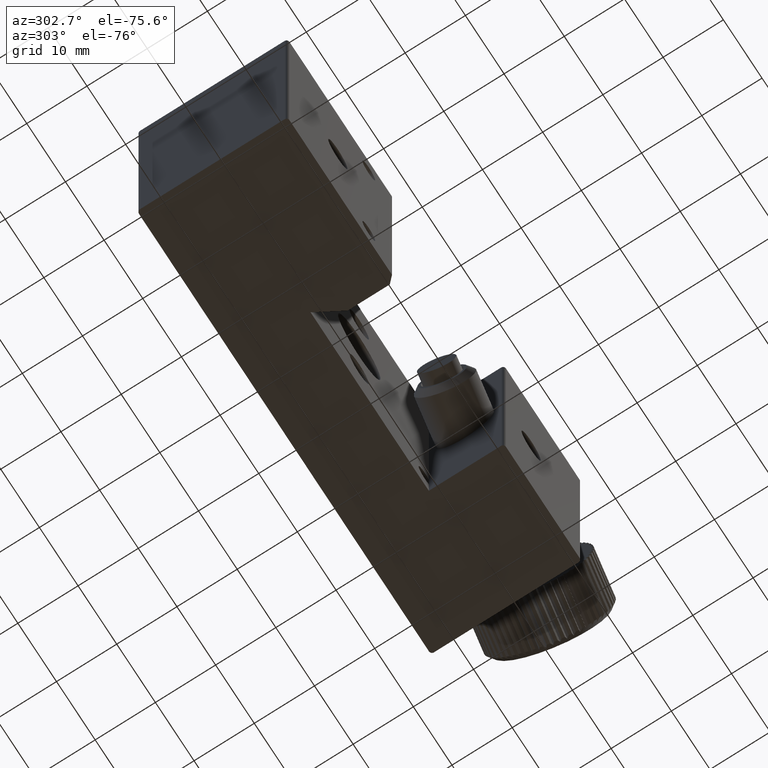
[diagram: clean part render]
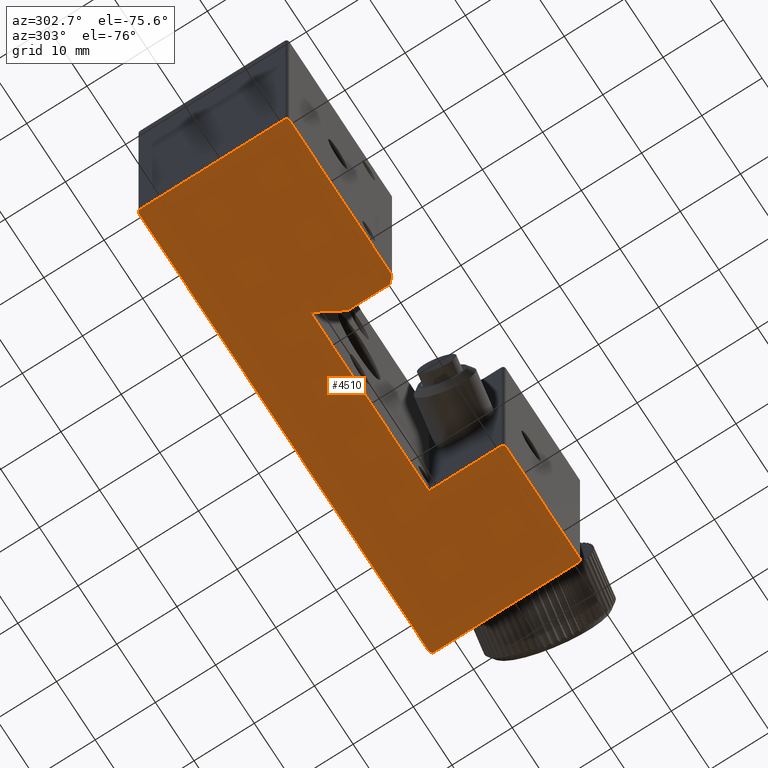
[diagram: same view with one face highlighted and labeled with its STEP entity id]
A machine part, auxiliary view. The second image highlights one B-rep face of the part: STEP entity #4510.
In plain terms, the highlighted planar face has unit normal (0, 0, 1).
Its self-contained STEP definition (entity closure, byte-faithful):
#54 = FACE_OUTER_BOUND ( 'NONE', #5992, .T. ) ;
#557 = CARTESIAN_POINT ( 'NONE',  ( -4.223264835549443300, -10.44205040425162800, -22.00000000000000000 ) ) ;
#558 = DIRECTION ( 'NONE',  ( 0.0000000000000000000, 0.0000000000000000000, 1.000000000000000000 ) ) ;
#559 = DIRECTION ( 'NONE',  ( 1.000000000000000000, 0.0000000000000000000, 0.0000000000000000000 ) ) ;
#1169 = VERTEX_POINT ( 'NONE', #3113 ) ;
#1440 = EDGE_CURVE ( 'NONE', #5052, #5116, #1952, .T. ) ;
#1441 = EDGE_CURVE ( 'NONE', #5121, #5058, #1946, .T. ) ;
#1442 = EDGE_CURVE ( 'NONE', #5119, #5052, #1954, .T. ) ;
#1444 = EDGE_CURVE ( 'NONE', #1169, #5053, #1956, .T. ) ;
#1451 = EDGE_CURVE ( 'NONE', #5400, #1169, #1969, .T. ) ;
#1454 = EDGE_CURVE ( 'NONE', #5057, #5400, #1962, .T. ) ;
#1455 = EDGE_CURVE ( 'NONE', #5058, #5116, #1977, .T. ) ;
#1458 = EDGE_CURVE ( 'NONE', #5057, #5060, #1978, .T. ) ;
#1465 = EDGE_CURVE ( 'NONE', #5119, #5060, #1993, .T. ) ;
#1475 = CARTESIAN_POINT ( 'NONE',  ( 14.77673516445055700, 13.55794959574837000, -22.00000000000000000 ) ) ;
#1476 = DIRECTION ( 'NONE',  ( 0.0000000000000000000, 0.0000000000000000000, 1.000000000000000000 ) ) ;
#1477 = DIRECTION ( 'NONE',  ( 1.000000000000000000, 0.0000000000000000000, 0.0000000000000000000 ) ) ;
#1492 = DIRECTION ( 'NONE',  ( -0.5000000000000082200, 0.8660254037844338200, 0.0000000000000000000 ) ) ;
#1497 = CARTESIAN_POINT ( 'NONE',  ( 15.27673516445055700, -10.44205040425162800, -22.00000000000000000 ) ) ;
#1498 = DIRECTION ( 'NONE',  ( 0.0000000000000000000, 1.000000000000000000, 0.0000000000000000000 ) ) ;
#1502 = CARTESIAN_POINT ( 'NONE',  ( -32.72326483554944300, -2.942050404251628700, -22.00000000000000000 ) ) ;
#1505 = CARTESIAN_POINT ( 'NONE',  ( 14.77673516445055700, -10.44205040425162800, -22.00000000000000000 ) ) ;
#1506 = DIRECTION ( 'NONE',  ( 0.0000000000000000000, 0.0000000000000000000, 1.000000000000000000 ) ) ;
#1507 = DIRECTION ( 'NONE',  ( 1.000000000000000000, 0.0000000000000000000, 0.0000000000000000000 ) ) ;
#1509 = CARTESIAN_POINT ( 'NONE',  ( 14.77673516445055700, -10.94205040425163000, -22.00000000000000000 ) ) ;
#1513 = DIRECTION ( 'NONE',  ( -1.000000000000000000, 0.0000000000000000000, 0.0000000000000000000 ) ) ;
#1573 = CARTESIAN_POINT ( 'NONE',  ( -32.72326483554944300, -9.942050404251684600, -22.00000000000000000 ) ) ;
#1577 = CARTESIAN_POINT ( 'NONE',  ( -4.723264835549439800, -10.44205040425162800, -22.00000000000000000 ) ) ;
#1584 = CARTESIAN_POINT ( 'NONE',  ( -4.723264835549439800, 1.557949595748372000, -22.00000000000000000 ) ) ;
#1585 = DIRECTION ( 'NONE',  ( -1.000000000000000000, 0.0000000000000000000, 0.0000000000000000000 ) ) ;
#1586 = DIRECTION ( 'NONE',  ( 0.0000000000000000000, 1.000000000000000000, 0.0000000000000000000 ) ) ;
#1587 = DIRECTION ( 'NONE',  ( 0.0000000000000000000, 1.000000000000000000, 0.0000000000000000000 ) ) ;
#1946 = LINE ( 'NONE', #1573, #1957 ) ;
#1952 = LINE ( 'NONE', #1584, #1955 ) ;
#1954 = LINE ( 'NONE', #1577, #1959 ) ;
#1955 = VECTOR ( 'NONE', #1585, 1000.000000000000000 ) ;
#1956 = CIRCLE ( 'NONE', #3376, 0.5000000000000004400 ) ;
#1957 = VECTOR ( 'NONE', #1586, 1000.000000000000000 ) ;
#1959 = VECTOR ( 'NONE', #1587, 1000.000000000000000 ) ;
#1962 = CIRCLE ( 'NONE', #3379, 0.5000000000000004400 ) ;
#1969 = LINE ( 'NONE', #1497, #1972 ) ;
#1972 = VECTOR ( 'NONE', #1498, 1000.000000000000000 ) ;
#1977 = LINE ( 'NONE', #1502, #1979 ) ;
#1978 = LINE ( 'NONE', #1509, #1984 ) ;
#1979 = VECTOR ( 'NONE', #1492, 1000.000000000000100 ) ;
#1984 = VECTOR ( 'NONE', #1513, 1000.000000000000000 ) ;
#1993 = CIRCLE ( 'NONE', #3382, 0.4999999999999987200 ) ;
#2142 = CIRCLE ( 'NONE', #5764, 0.5000000000000004400 ) ;
#2152 = LINE ( 'NONE', #2869, #2154 ) ;
#2154 = VECTOR ( 'NONE', #2862, 1000.000000000000000 ) ;
#2862 = DIRECTION ( 'NONE',  ( -1.000000000000000000, 0.0000000000000000000, 0.0000000000000000000 ) ) ;
#2869 = CARTESIAN_POINT ( 'NONE',  ( 14.77673516445055700, 14.05794959574837000, -22.00000000000000000 ) ) ;
#2873 = CARTESIAN_POINT ( 'NONE',  ( -60.22326483554944300, 13.55794959574837000, -22.00000000000000000 ) ) ;
#2874 = DIRECTION ( 'NONE',  ( 0.0000000000000000000, 0.0000000000000000000, 1.000000000000000000 ) ) ;
#2875 = DIRECTION ( 'NONE',  ( 1.000000000000000000, 0.0000000000000000000, 0.0000000000000000000 ) ) ;
#2950 = CARTESIAN_POINT ( 'NONE',  ( -4.723264835549439800, 1.557949595748372000, -22.00000000000000000 ) ) ;
#2951 = CARTESIAN_POINT ( 'NONE',  ( 14.77673516445055700, 14.05794959574837000, -22.00000000000000000 ) ) ;
#2953 = CARTESIAN_POINT ( 'NONE',  ( -60.22326483554944300, 14.05794959574837000, -22.00000000000000000 ) ) ;
#2955 = CARTESIAN_POINT ( 'NONE',  ( 14.77673516445055700, -10.94205040425163000, -22.00000000000000000 ) ) ;
#2956 = CARTESIAN_POINT ( 'NONE',  ( -32.72326483554944300, -2.942050404251628700, -22.00000000000000000 ) ) ;
#2958 = CARTESIAN_POINT ( 'NONE',  ( -4.223264835549443300, -10.94205040425162800, -22.00000000000000000 ) ) ;
#2962 = CARTESIAN_POINT ( 'NONE',  ( -35.32134104690281600, 1.557949595748372000, -22.00000000000000000 ) ) ;
#2964 = CARTESIAN_POINT ( 'NONE',  ( -4.723264835549439800, -10.44205040425162800, -22.00000000000000000 ) ) ;
#2965 = CARTESIAN_POINT ( 'NONE',  ( -32.72326483554944300, -9.942050404251684600, -22.00000000000000000 ) ) ;
#2967 = CARTESIAN_POINT ( 'NONE',  ( -60.22326483554944300, -10.94205040425163000, -22.00000000000000000 ) ) ;
#2970 = CARTESIAN_POINT ( 'NONE',  ( -60.72326483554944300, 13.55794959574837000, -22.00000000000000000 ) ) ;
#2971 = CARTESIAN_POINT ( 'NONE',  ( -33.72326483554943600, -10.94205040425163000, -22.00000000000000000 ) ) ;
#2974 = CARTESIAN_POINT ( 'NONE',  ( 15.27673516445055700, -10.44205040425162800, -22.00000000000000000 ) ) ;
#2978 = CARTESIAN_POINT ( 'NONE',  ( -60.72326483554944300, -10.44205040425162800, -22.00000000000000000 ) ) ;
#3113 = CARTESIAN_POINT ( 'NONE',  ( 15.27673516445055700, 13.55794959574837000, -22.00000000000000000 ) ) ;
#3376 = AXIS2_PLACEMENT_3D ( 'NONE', #1475, #1476, #1477 ) ;
#3379 = AXIS2_PLACEMENT_3D ( 'NONE', #1505, #1506, #1507 ) ;
#3382 = AXIS2_PLACEMENT_3D ( 'NONE', #557, #558, #559 ) ;
#3626 = EDGE_CURVE ( 'NONE', #5055, #5124, #2142, .T. ) ;
#3627 = EDGE_CURVE ( 'NONE', #5053, #5055, #2152, .T. ) ;
#4202 = CIRCLE ( 'NONE', #5150, 0.5000000000000004400 ) ;
#4203 = LINE ( 'NONE', #5489, #4205 ) ;
#4205 = VECTOR ( 'NONE', #5498, 1000.000000000000000 ) ;
#4206 = LINE ( 'NONE', #5499, #4211 ) ;
#4211 = VECTOR ( 'NONE', #5508, 999.9999999999998900 ) ;
#4223 = LINE ( 'NONE', #5513, #4227 ) ;
#4227 = VECTOR ( 'NONE', #5527, 1000.000000000000000 ) ;
#4510 = ADVANCED_FACE ( 'NONE', ( #54 ), #4862, .F. ) ;
#4855 = CARTESIAN_POINT ( 'NONE',  ( 14.77673516445055700, 13.55794959574837000, -22.00000000000000000 ) ) ;
#4862 = PLANE ( 'NONE',  #7102 ) ;
#4865 = DIRECTION ( 'NONE',  ( 0.0000000000000000000, 0.0000000000000000000, 1.000000000000000000 ) ) ;
#4866 = DIRECTION ( 'NONE',  ( 1.000000000000000000, 0.0000000000000000000, -0.0000000000000000000 ) ) ;
#5052 = VERTEX_POINT ( 'NONE', #2950 ) ;
#5053 = VERTEX_POINT ( 'NONE', #2951 ) ;
#5055 = VERTEX_POINT ( 'NONE', #2953 ) ;
#5057 = VERTEX_POINT ( 'NONE', #2955 ) ;
#5058 = VERTEX_POINT ( 'NONE', #2956 ) ;
#5060 = VERTEX_POINT ( 'NONE', #2958 ) ;
#5116 = VERTEX_POINT ( 'NONE', #2962 ) ;
#5118 = VERTEX_POINT ( 'NONE', #2967 ) ;
#5119 = VERTEX_POINT ( 'NONE', #2964 ) ;
#5121 = VERTEX_POINT ( 'NONE', #2965 ) ;
#5124 = VERTEX_POINT ( 'NONE', #2970 ) ;
#5150 = AXIS2_PLACEMENT_3D ( 'NONE', #5502, #5503, #5504 ) ;
#5248 = ORIENTED_EDGE ( 'NONE', *, *, #3627, .F. ) ;
#5249 = ORIENTED_EDGE ( 'NONE', *, *, #3626, .F. ) ;
#5250 = ORIENTED_EDGE ( 'NONE', *, *, #6236, .T. ) ;
#5251 = ORIENTED_EDGE ( 'NONE', *, *, #6237, .F. ) ;
#5252 = ORIENTED_EDGE ( 'NONE', *, *, #6249, .T. ) ;
#5253 = ORIENTED_EDGE ( 'NONE', *, *, #6240, .T. ) ;
#5254 = ORIENTED_EDGE ( 'NONE', *, *, #1441, .F. ) ;
#5255 = ORIENTED_EDGE ( 'NONE', *, *, #1455, .F. ) ;
#5256 = ORIENTED_EDGE ( 'NONE', *, *, #1440, .T. ) ;
#5257 = ORIENTED_EDGE ( 'NONE', *, *, #1442, .T. ) ;
#5258 = ORIENTED_EDGE ( 'NONE', *, *, #1465, .F. ) ;
#5259 = ORIENTED_EDGE ( 'NONE', *, *, #1458, .T. ) ;
#5260 = ORIENTED_EDGE ( 'NONE', *, *, #1454, .F. ) ;
#5261 = ORIENTED_EDGE ( 'NONE', *, *, #1451, .F. ) ;
#5262 = ORIENTED_EDGE ( 'NONE', *, *, #1444, .F. ) ;
#5394 = VERTEX_POINT ( 'NONE', #2971 ) ;
#5399 = VERTEX_POINT ( 'NONE', #2978 ) ;
#5400 = VERTEX_POINT ( 'NONE', #2974 ) ;
#5489 = CARTESIAN_POINT ( 'NONE',  ( -60.72326483554944300, -10.44205040425162800, -22.00000000000000000 ) ) ;
#5498 = DIRECTION ( 'NONE',  ( 0.0000000000000000000, 1.000000000000000000, 0.0000000000000000000 ) ) ;
#5499 = CARTESIAN_POINT ( 'NONE',  ( -32.72326483554944300, -9.942050404251684600, -22.00000000000000000 ) ) ;
#5502 = CARTESIAN_POINT ( 'NONE',  ( -60.22326483554944300, -10.44205040425162800, -22.00000000000000000 ) ) ;
#5503 = DIRECTION ( 'NONE',  ( 0.0000000000000000000, 0.0000000000000000000, 1.000000000000000000 ) ) ;
#5504 = DIRECTION ( 'NONE',  ( 1.000000000000000000, 0.0000000000000000000, 0.0000000000000000000 ) ) ;
#5508 = DIRECTION ( 'NONE',  ( -0.7071067811865674500, -0.7071067811865277000, 0.0000000000000000000 ) ) ;
#5513 = CARTESIAN_POINT ( 'NONE',  ( -33.72326483554943600, -10.94205040425163000, -22.00000000000000000 ) ) ;
#5527 = DIRECTION ( 'NONE',  ( -1.000000000000000000, 0.0000000000000000000, 0.0000000000000000000 ) ) ;
#5764 = AXIS2_PLACEMENT_3D ( 'NONE', #2873, #2874, #2875 ) ;
#5992 = EDGE_LOOP ( 'NONE', ( #5262, #5261, #5260, #5259, #5258, #5257, #5256, #5255, #5254, #5253, #5252, #5251, #5250, #5249, #5248 ) ) ;
#6236 = EDGE_CURVE ( 'NONE', #5399, #5124, #4203, .T. ) ;
#6237 = EDGE_CURVE ( 'NONE', #5399, #5118, #4202, .T. ) ;
#6240 = EDGE_CURVE ( 'NONE', #5121, #5394, #4206, .T. ) ;
#6249 = EDGE_CURVE ( 'NONE', #5394, #5118, #4223, .T. ) ;
#7102 = AXIS2_PLACEMENT_3D ( 'NONE', #4855, #4865, #4866 ) ;